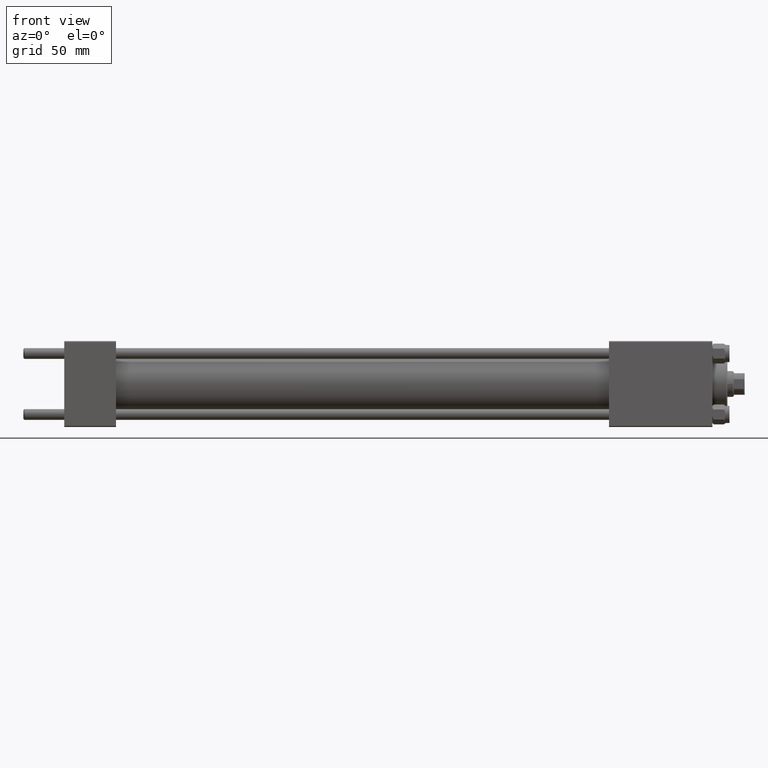
[diagram: clean part render]
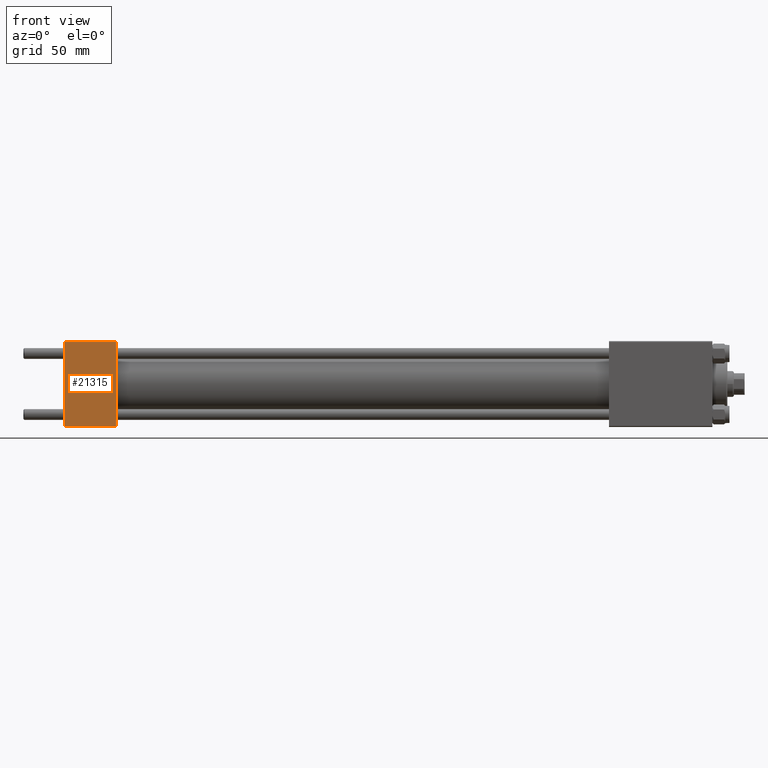
[diagram: same view with one face highlighted and labeled with its STEP entity id]
A machine part, front view. The second image highlights one B-rep face of the part: STEP entity #21315.
In plain terms, the highlighted planar face has unit normal (0, 1, 0).
Its self-contained STEP definition (entity closure, byte-faithful):
#366 = LINE ( 'NONE', #4636, #45487 ) ;
#390 = EDGE_CURVE ( 'NONE', #42965, #26858, #18217, .T. ) ;
#1110 = DIRECTION ( 'NONE',  ( 0.000000000000000000, 8.673617379884036705E-17, -1.000000000000000000 ) ) ;
#4636 = CARTESIAN_POINT ( 'NONE',  ( 0.000000000000000000, -20.00000000000000355, 19.99999999999998934 ) ) ;
#7504 = DIRECTION ( 'NONE',  ( 0.000000000000000000, 8.673617379884036705E-17, -1.000000000000000000 ) ) ;
#9007 = CARTESIAN_POINT ( 'NONE',  ( 0.000000000000000000, -20.00000000000000355, 19.49999999999998224 ) ) ;
#10301 = DIRECTION ( 'NONE',  ( 0.000000000000000000, -8.673617379884036705E-17, 1.000000000000000000 ) ) ;
#11273 = LINE ( 'NONE', #26616, #25115 ) ;
#11333 = VERTEX_POINT ( 'NONE', #16338 ) ;
#13813 = VERTEX_POINT ( 'NONE', #45791 ) ;
#14951 = CARTESIAN_POINT ( 'NONE',  ( 24.00000000000000000, -20.00000000000000355, 19.49999999999998224 ) ) ;
#16338 = CARTESIAN_POINT ( 'NONE',  ( 0.000000000000000000, -20.00000000000000000, -19.49999999999999645 ) ) ;
#16744 = VECTOR ( 'NONE', #33570, 1000.000000000000000 ) ;
#16820 = ORIENTED_EDGE ( 'NONE', *, *, #36463, .F. ) ;
#17604 = FACE_OUTER_BOUND ( 'NONE', #43743, .T. ) ;
#18217 = LINE ( 'NONE', #36851, #16744 ) ;
#21315 = ADVANCED_FACE ( 'NONE', ( #17604 ), #36992, .F. ) ;
#25115 = VECTOR ( 'NONE', #7504, 1000.000000000000000 ) ;
#26616 = CARTESIAN_POINT ( 'NONE',  ( 24.00000000000000000, -20.00000000000000355, 19.99999999999998934 ) ) ;
#26858 = VERTEX_POINT ( 'NONE', #9007 ) ;
#27015 = VECTOR ( 'NONE', #36997, 1000.000000000000000 ) ;
#27585 = AXIS2_PLACEMENT_3D ( 'NONE', #48095, #40776, #10301 ) ;
#29561 = ORIENTED_EDGE ( 'NONE', *, *, #49757, .T. ) ;
#29682 = LINE ( 'NONE', #45057, #27015 ) ;
#33013 = ORIENTED_EDGE ( 'NONE', *, *, #43998, .T. ) ;
#33570 = DIRECTION ( 'NONE',  ( -1.000000000000000000, 0.000000000000000000, 0.000000000000000000 ) ) ;
#36463 = EDGE_CURVE ( 'NONE', #42965, #13813, #11273, .T. ) ;
#36851 = CARTESIAN_POINT ( 'NONE',  ( 24.00000000000000000, -20.00000000000000355, 19.49999999999998224 ) ) ;
#36992 = PLANE ( 'NONE',  #27585 ) ;
#36997 = DIRECTION ( 'NONE',  ( 1.000000000000000000, 0.000000000000000000, 0.000000000000000000 ) ) ;
#40776 = DIRECTION ( 'NONE',  ( -0.000000000000000000, 1.000000000000000000, 8.673617379884036705E-17 ) ) ;
#42590 = ORIENTED_EDGE ( 'NONE', *, *, #390, .T. ) ;
#42965 = VERTEX_POINT ( 'NONE', #14951 ) ;
#43743 = EDGE_LOOP ( 'NONE', ( #33013, #29561, #16820, #42590 ) ) ;
#43998 = EDGE_CURVE ( 'NONE', #26858, #11333, #366, .T. ) ;
#45057 = CARTESIAN_POINT ( 'NONE',  ( 24.00000000000000000, -20.00000000000000000, -19.49999999999999645 ) ) ;
#45487 = VECTOR ( 'NONE', #1110, 1000.000000000000000 ) ;
#45791 = CARTESIAN_POINT ( 'NONE',  ( 24.00000000000000000, -20.00000000000000000, -19.49999999999999645 ) ) ;
#48095 = CARTESIAN_POINT ( 'NONE',  ( 24.00000000000000000, -20.00000000000000355, 19.99999999999998934 ) ) ;
#49757 = EDGE_CURVE ( 'NONE', #11333, #13813, #29682, .T. ) ;